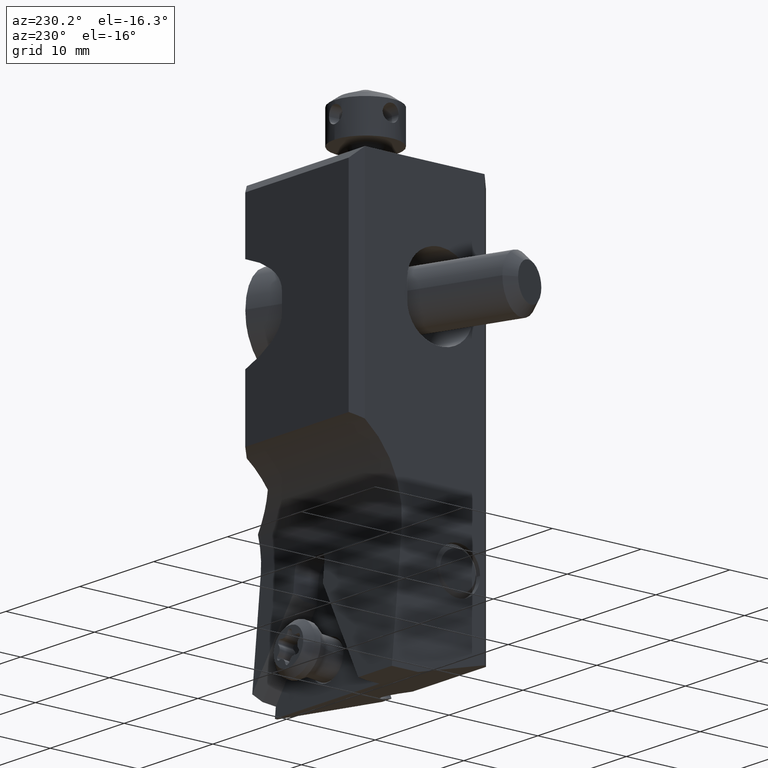
[diagram: clean part render]
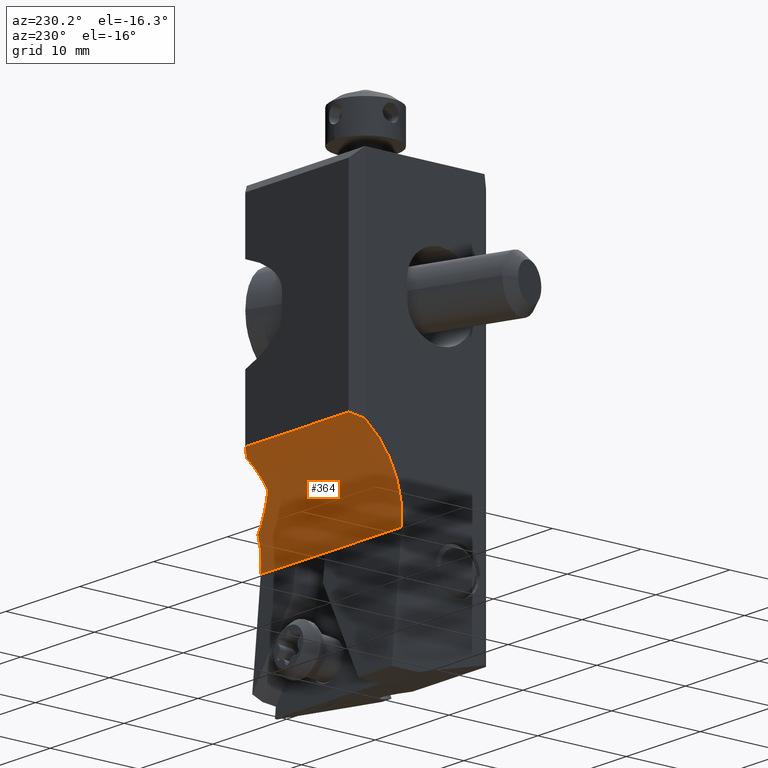
[diagram: same view with one face highlighted and labeled with its STEP entity id]
A machine part, auxiliary view. The second image highlights one B-rep face of the part: STEP entity #364.
In plain terms, the highlighted cylindrical surface (partial cylindrical patch) has radius 10 mm, axis along (-1, 0, 0).
Its self-contained STEP definition (entity closure, byte-faithful):
#162=CYLINDRICAL_SURFACE('',#2684,10.);
#222=CIRCLE('',#2672,10.);
#225=CIRCLE('',#2681,10.);
#226=CIRCLE('',#2683,10.);
#364=ADVANCED_FACE('',(#552),#162,.F.);
#552=FACE_OUTER_BOUND('',#685,.T.);
#685=EDGE_LOOP('',(#1233,#1234,#1235,#1236,#1237,#1238,#1239,#1240,#1241,
#1242));
#854=LINE('',#3857,#1028);
#855=LINE('',#3861,#1029);
#856=LINE('',#3871,#1030);
#857=LINE('',#3873,#1031);
#1028=VECTOR('',#3062,1.);
#1029=VECTOR('',#3065,1.);
#1030=VECTOR('',#3074,1.);
#1031=VECTOR('',#3075,1.);
#1233=ORIENTED_EDGE('',*,*,#2195,.T.);
#1234=ORIENTED_EDGE('',*,*,#2187,.T.);
#1235=ORIENTED_EDGE('',*,*,#2196,.T.);
#1236=ORIENTED_EDGE('',*,*,#2197,.T.);
#1237=ORIENTED_EDGE('',*,*,#2198,.T.);
#1238=ORIENTED_EDGE('',*,*,#2199,.T.);
#1239=ORIENTED_EDGE('',*,*,#2200,.T.);
#1240=ORIENTED_EDGE('',*,*,#2201,.T.);
#1241=ORIENTED_EDGE('',*,*,#2202,.T.);
#1242=ORIENTED_EDGE('',*,*,#2203,.T.);
#1938=VERTEX_POINT('',#3835);
#1940=VERTEX_POINT('',#3840);
#1948=VERTEX_POINT('',#3858);
#1949=VERTEX_POINT('',#3860);
#1950=VERTEX_POINT('',#3862);
#1951=VERTEX_POINT('',#3864);
#1952=VERTEX_POINT('',#3866);
#1953=VERTEX_POINT('',#3868);
#1954=VERTEX_POINT('',#3870);
#1955=VERTEX_POINT('',#3872);
#2187=EDGE_CURVE('',#1938,#1940,#222,.T.);
#2195=EDGE_CURVE('',#1948,#1938,#854,.T.);
#2196=EDGE_CURVE('',#1940,#1949,#2535,.T.);
#2197=EDGE_CURVE('',#1949,#1950,#855,.T.);
#2198=EDGE_CURVE('',#1950,#1951,#2536,.T.);
#2199=EDGE_CURVE('',#1951,#1952,#225,.T.);
#2200=EDGE_CURVE('',#1952,#1953,#2537,.T.);
#2201=EDGE_CURVE('',#1953,#1954,#226,.T.);
#2202=EDGE_CURVE('',#1954,#1955,#856,.T.);
#2203=EDGE_CURVE('',#1955,#1948,#857,.T.);
#2535=ELLIPSE('',#2679,14.142135623731,10.);
#2536=ELLIPSE('',#2680,14.142135623731,10.);
#2537=ELLIPSE('',#2682,14.142135623731,10.);
#2672=AXIS2_PLACEMENT_3D('',#3841,#3046,#3047);
#2679=AXIS2_PLACEMENT_3D('',#3859,#3063,#3064);
#2680=AXIS2_PLACEMENT_3D('',#3863,#3066,#3067);
#2681=AXIS2_PLACEMENT_3D('',#3865,#3068,#3069);
#2682=AXIS2_PLACEMENT_3D('',#3867,#3070,#3071);
#2683=AXIS2_PLACEMENT_3D('',#3869,#3072,#3073);
#2684=AXIS2_PLACEMENT_3D('',#3874,#3076,#3077);
#3046=DIRECTION('',(-1.,0.,0.));
#3047=DIRECTION('',(0.,-0.996194698091744,-0.0871557427476737));
#3062=DIRECTION('',(-1.,9.252687677691E-14,3.486519994492E-14));
#3063=DIRECTION('',(-0.707106781186548,0.707106781186548,0.));
#3064=DIRECTION('',(-0.707106781186548,-0.707106781186548,0.));
#3065=DIRECTION('',(1.,0.,1.141943682472E-14));
#3066=DIRECTION('',(0.707106781186548,0.707106781186548,0.));
#3067=DIRECTION('',(-0.707106781186548,0.707106781186548,0.));
#3068=DIRECTION('',(1.,0.,0.));
#3069=DIRECTION('',(0.,-0.580866963927987,0.813998507502982));
#3070=DIRECTION('',(0.707106781186548,0.,0.707106781186548));
#3071=DIRECTION('',(-0.707106781186548,0.,0.707106781186548));
#3072=DIRECTION('',(1.,0.,0.));
#3073=DIRECTION('',(0.,-0.964006728103886,0.265877844451996));
#3074=DIRECTION('',(-1.,-3.21505509694E-13,-8.554148848679E-14));
#3075=DIRECTION('',(-1.,1.418400464108E-13,3.015340846776E-13));
#3076=DIRECTION('',(-1.,0.,0.));
#3077=DIRECTION('',(0.,0.,-1.));
#3835=CARTESIAN_POINT('',(-16.,10.34672265836,-33.610335872));
#3840=CARTESIAN_POINT('',(-15.9999999999994,14.5000000000011,-24.5987933694897));
#3841=CARTESIAN_POINT('',(-16.,20.30866963928,-32.73877844452));
#3857=CARTESIAN_POINT('',(-5.402549729274,10.34672265836,-33.610335872));
#3858=CARTESIAN_POINT('',(-5.402549729274,10.34672265836,-33.610335872));
#3859=CARTESIAN_POINT('',(-10.19133036072,20.30866963928,-32.73877844452));
#3860=CARTESIAN_POINT('',(-15.,15.5,-23.9708427524502));
#3861=CARTESIAN_POINT('',(-15.,15.5,-23.97084275245));
#3862=CARTESIAN_POINT('',(-1.0000000000003,15.5,-23.9708427524502));
#3863=CARTESIAN_POINT('',(-5.8086696392806,20.30866963928,-32.73877844452));
#3864=CARTESIAN_POINT('',(3.15417990871427E-13,14.5,-24.5987933694903));
#3865=CARTESIAN_POINT('',(0.,20.30866963928,-32.73877844452));
#3866=CARTESIAN_POINT('',(1.88611472856872E-13,12.1192605052387,-27.0000000000005));
#3867=CARTESIAN_POINT('',(5.738778444519,20.30866963928,-32.73877844452));
#3868=CARTESIAN_POINT('',(3.08000000000082,10.668602358241,-30.0800000000005));
#3869=CARTESIAN_POINT('',(3.08,20.30866963928,-32.73877844452));
#3870=CARTESIAN_POINT('',(3.08,10.34672265836,-33.610335872));
#3871=CARTESIAN_POINT('',(3.08,10.34672265836,-33.610335872));
#3872=CARTESIAN_POINT('',(-1.820782316445,10.34672265836,-33.610335872));
#3873=CARTESIAN_POINT('',(-1.820782316445,10.34672265836,-33.610335872));
#3874=CARTESIAN_POINT('',(3.4616,20.30866963928,-32.73877844452));